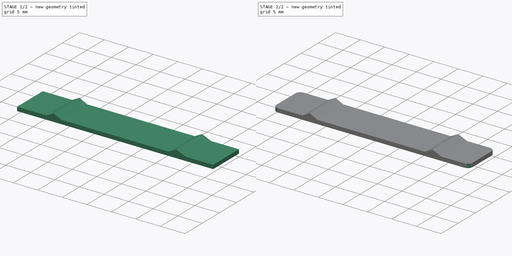
[diagram: build sequence overview — one tinted view per stage of 2, left to right]
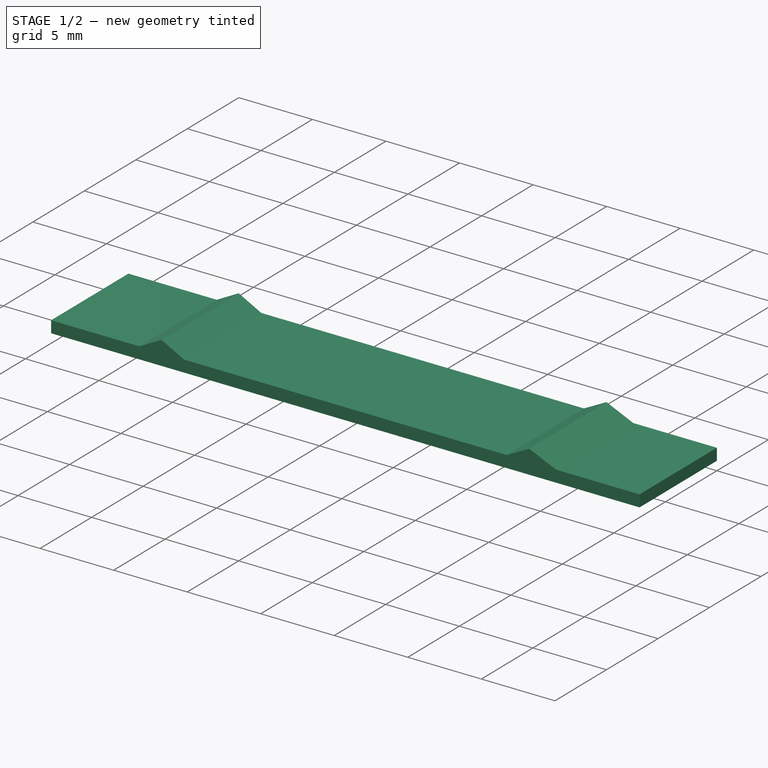
[diagram: stage 1 of 2 — iso view after this stage's code; geometry added in this stage tinted green]
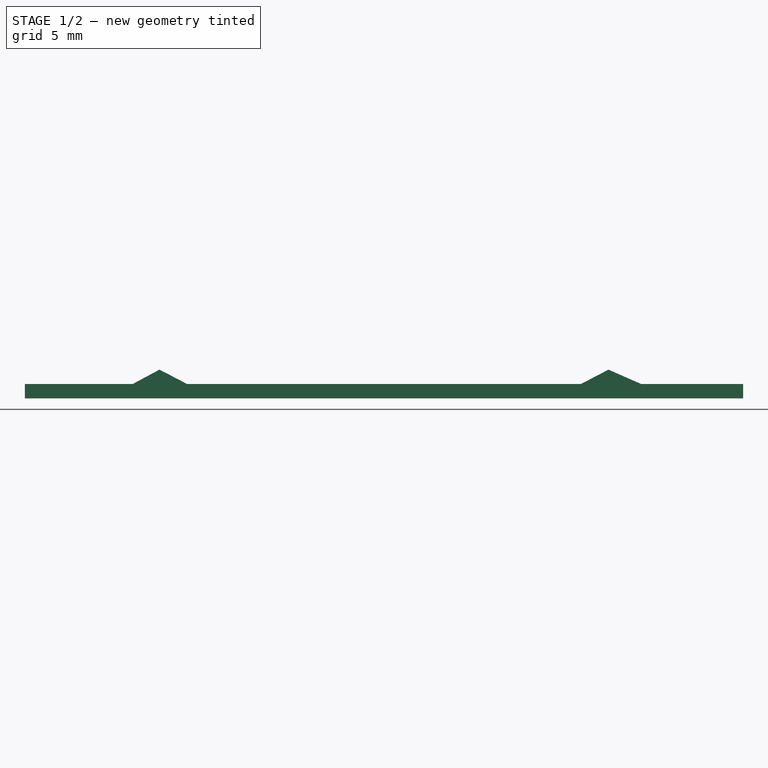
[diagram: stage 1 of 2 — front view after this stage's code; geometry added in this stage tinted green]
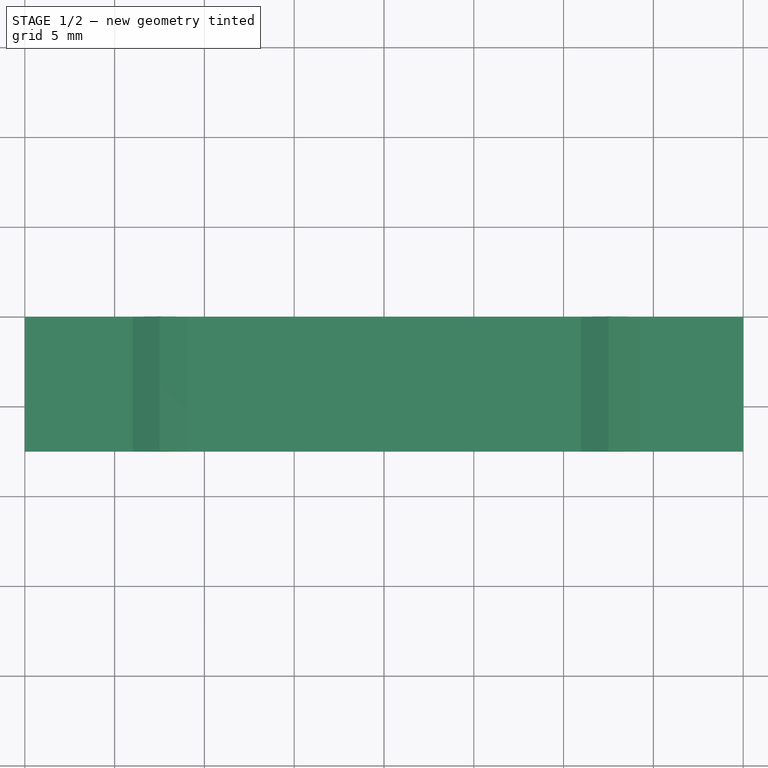
[diagram: stage 1 of 2 — top view after this stage's code; geometry added in this stage tinted green]
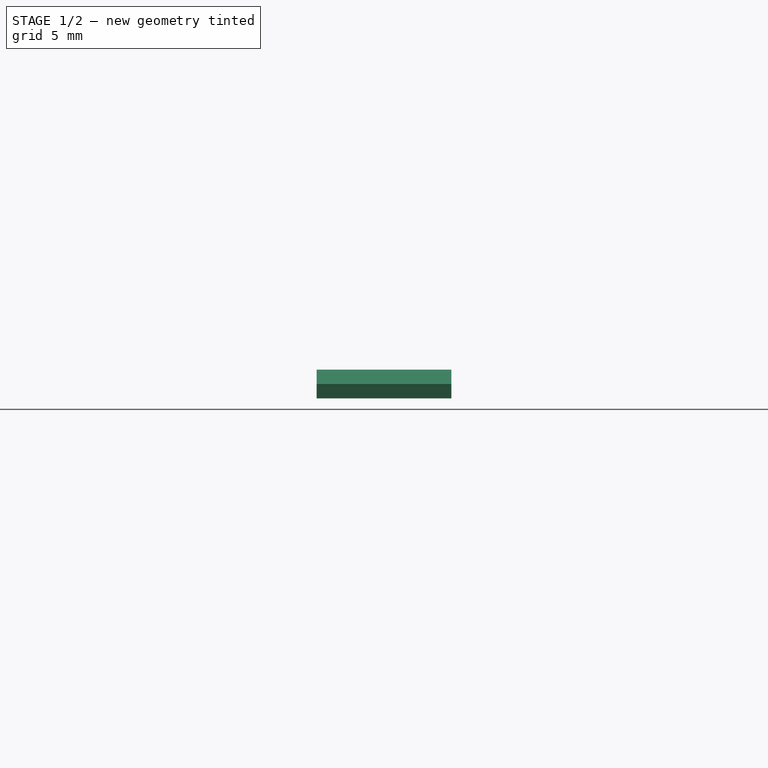
[diagram: stage 1 of 2 — right view after this stage's code; geometry added in this stage tinted green]
FCSTD DOCUMENT  (FreeCAD 0.14R3702 (Git))
Label: clip_buga
License: CC-BY 3.0
LicenseURL: http://creativecommons.org/licenses/by/3.0/
objects: Sketcher::SketchObject×1, PartDesign::Pad×1, PartDesign::Fillet×1
note: 4 computed .brp shape members not serialized (recipe doc carries the construction recipe); baked Part::Feature solids carry a one-line shape summary decoded from their .brp

FEATURE [Sketcher::SketchObject] Sketch
  Placement = pos=(0,0,0) rot=(-1,0,0;4.71239rad)
  sketch-geometry (10):
    g0: LineSegment StartX=-20 StartY=-0.4 StartZ=0 EndX=20 EndY=-0.4 EndZ=0
    g1: LineSegment StartX=20 StartY=-0.4 StartZ=0 EndX=20 EndY=0.4 EndZ=0
    g2: LineSegment StartX=20 StartY=0.4 StartZ=0 EndX=14.321 EndY=0.4 EndZ=0
    g3: LineSegment StartX=14.321 StartY=0.4 StartZ=0 EndX=12.5 EndY=1.2 EndZ=0
    g4: LineSegment StartX=12.5 StartY=1.2 StartZ=0 EndX=10.9654 EndY=0.4 EndZ=0
    g5: LineSegment StartX=10.9654 StartY=0.4 StartZ=0 EndX=-10.9654 EndY=0.4 EndZ=0
    g6: LineSegment StartX=-10.9654 StartY=0.4 StartZ=0 EndX=-12.5 EndY=1.2 EndZ=0
    g7: LineSegment StartX=-12.5 StartY=1.2 StartZ=0 EndX=-13.9947 EndY=0.4 EndZ=0
    g8: LineSegment StartX=-13.9947 StartY=0.4 StartZ=0 EndX=-20 EndY=0.4 EndZ=0
    g9: LineSegment StartX=-20 StartY=0.4 StartZ=0 EndX=-20 EndY=-0.4 EndZ=0
  constraints (25):
    c: Horizontal(g0)
    c: Coincident(g0,g1)
    c: Vertical(g1)
    c: Coincident(g1,g2)
    c: Horizontal(g2)
    c: Coincident(g2,g3)
    c: Coincident(g3,g4)
    c: Coincident(g4,g5)
    c: Coincident(g5,g6)
    c: Coincident(g6,g7)
    c: Coincident(g7,g8)
    c: Horizontal(g8)
    c: Coincident(g8,g9)
    c: Coincident(g9,g0)
    c: Vertical(g9)
    c: DistanceX(g0,g0) = 40
    c: DistanceX(g6,g3) = 25
    c: Symmetric(g6,g3,g-2)
    c: Symmetric(g5,g4,g-2)
    c: Symmetric(g0,g0,g-2)
    c: DistanceY(g1,g0) = -0.8
    c: Symmetric(g8,g1,g-2)
    c: Symmetric(g8,g0,g-1)
    c: Distance(g5,g0) = 0.8
    c: Distance(g6,g0) = 1.6
FEATURE [PartDesign::Pad] Pad
  Length = 7.5
  Length2 = 100
  Placement = pos=(0,0,0) rot=(-1,0,0;4.71239rad)
  Sketch = -> Sketch
  Type = 0
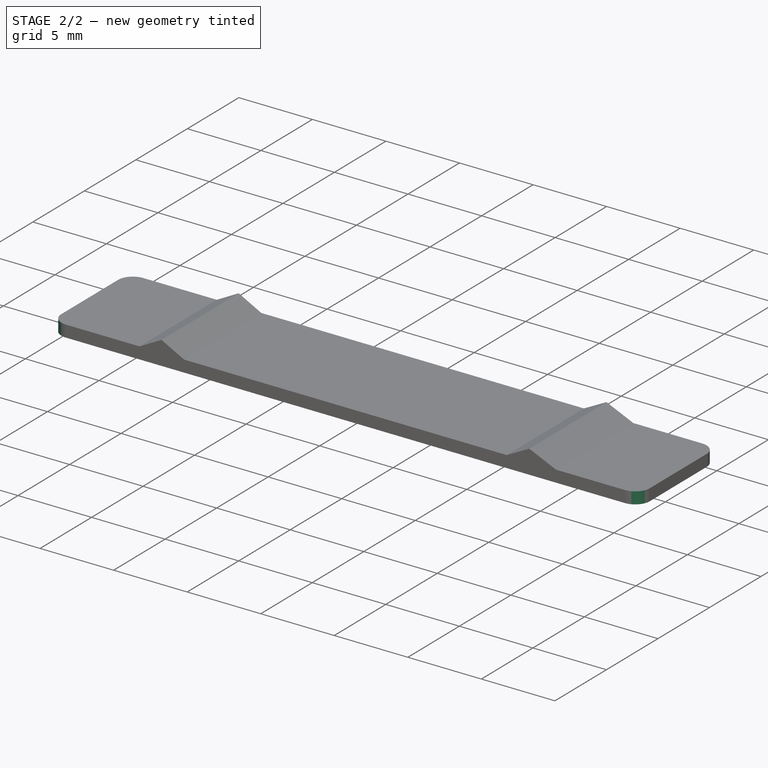
[diagram: stage 2 of 2 — iso view after this stage's code; geometry added in this stage tinted green]
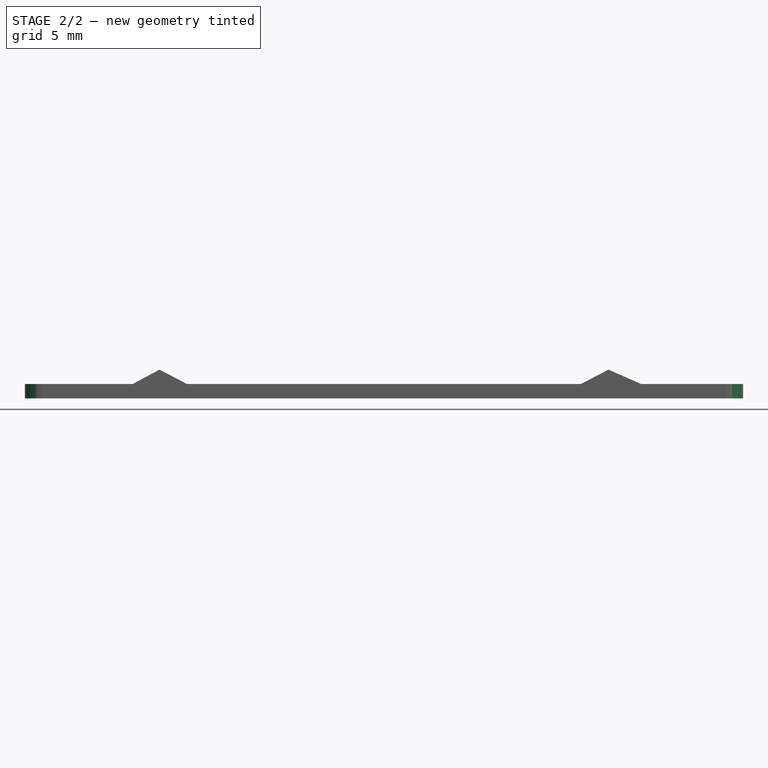
[diagram: stage 2 of 2 — front view after this stage's code; geometry added in this stage tinted green]
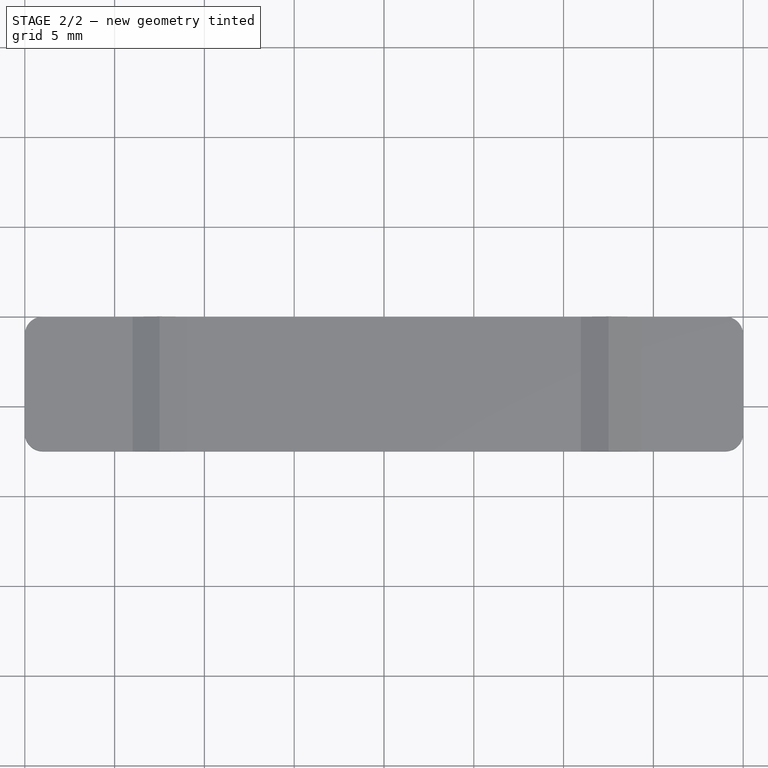
[diagram: stage 2 of 2 — top view after this stage's code; geometry added in this stage tinted green]
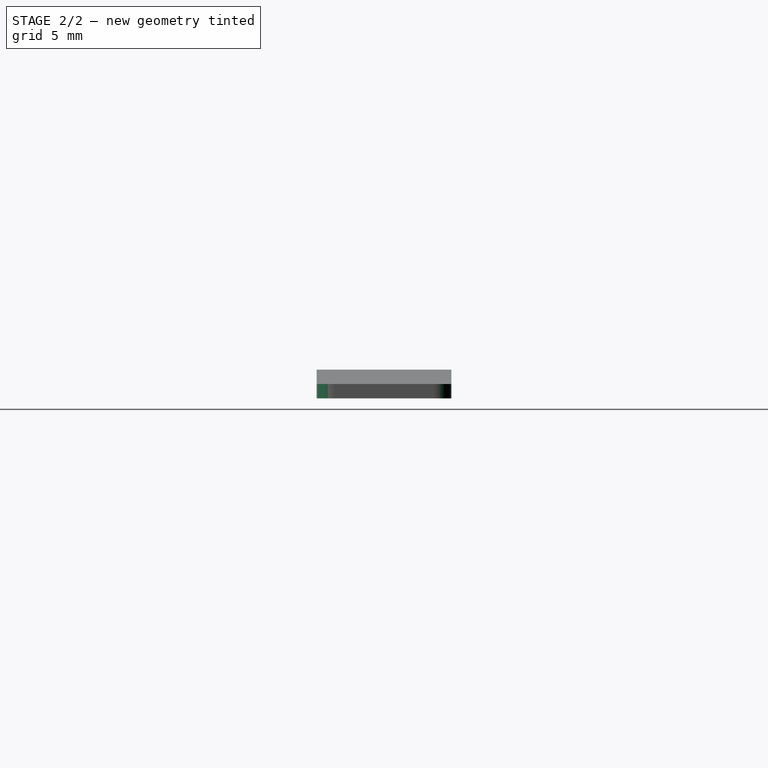
[diagram: stage 2 of 2 — right view after this stage's code; geometry added in this stage tinted green]
FEATURE [PartDesign::Fillet] Fillet
  Base = -> Pad [Edge30,Edge29,Edge6,Edge7]
  Placement = pos=(0,0,0) rot=(-1,0,0;4.71239rad)
  Radius = 1
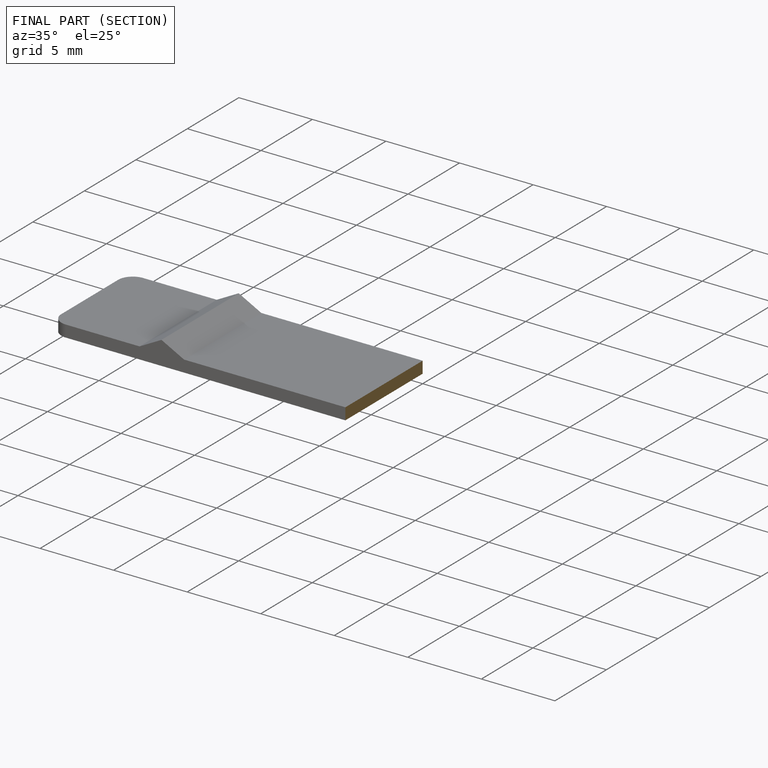
[diagram: finished part — half-section view (interior)]
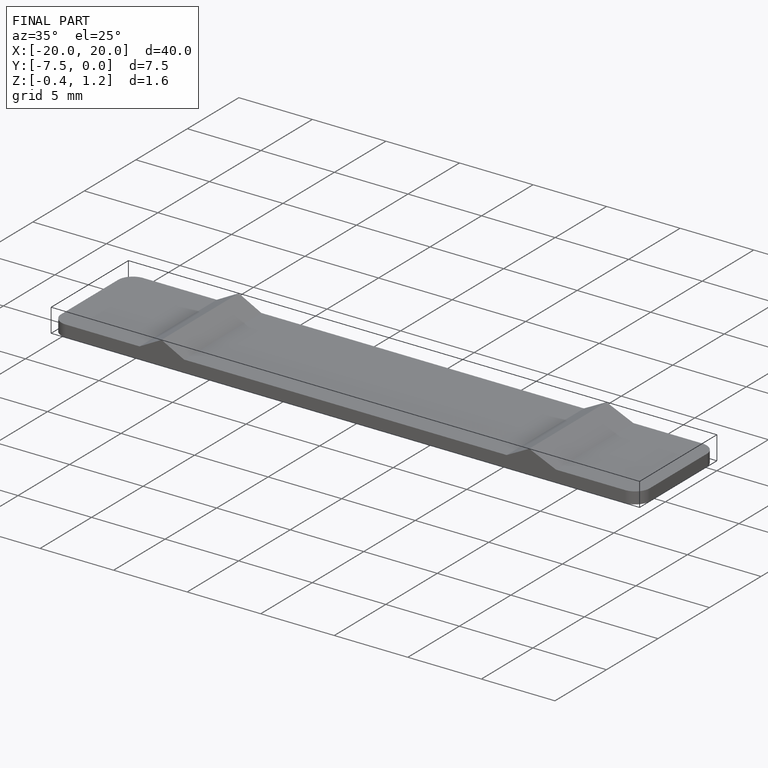
[diagram: finished part — iso view with bounding-box wireframe]
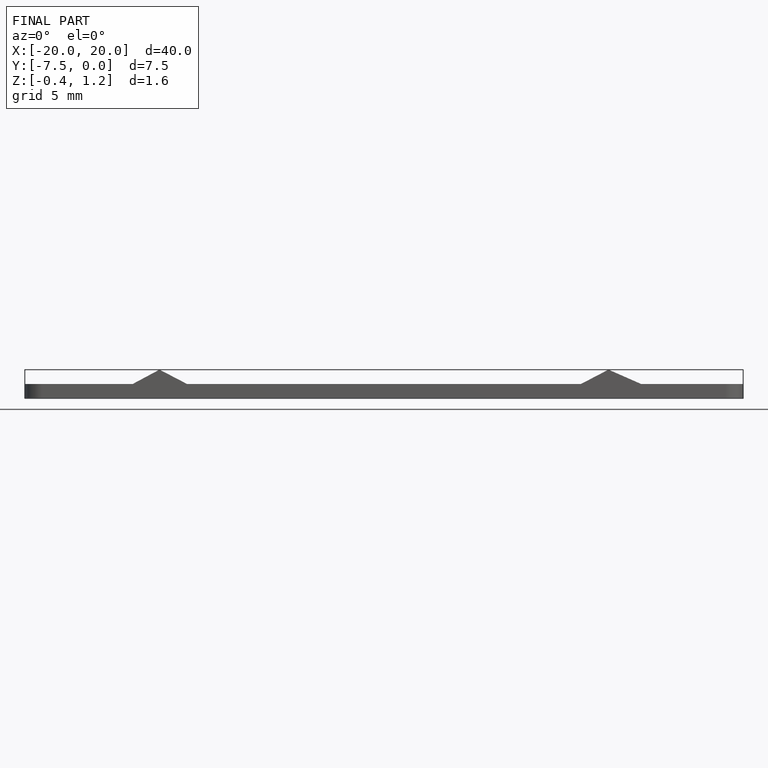
[diagram: finished part — front view with bounding-box wireframe]
